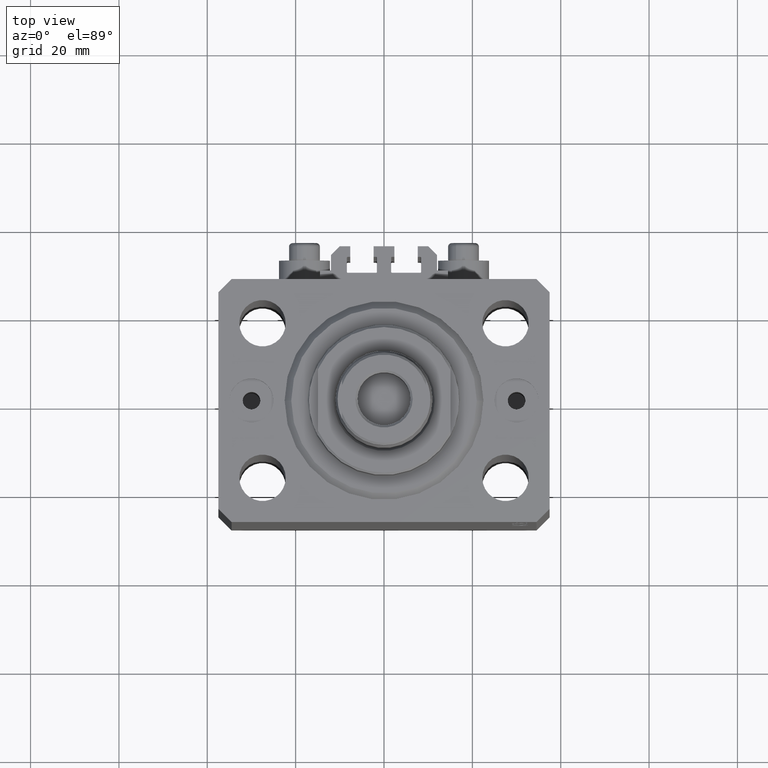
[diagram: clean part render]
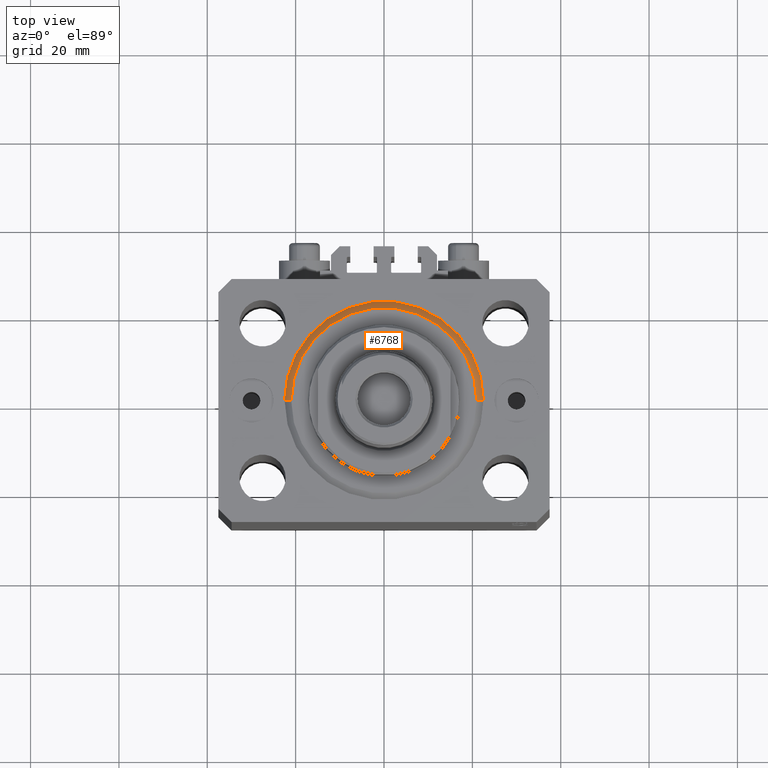
[diagram: same view with one face highlighted and labeled with its STEP entity id]
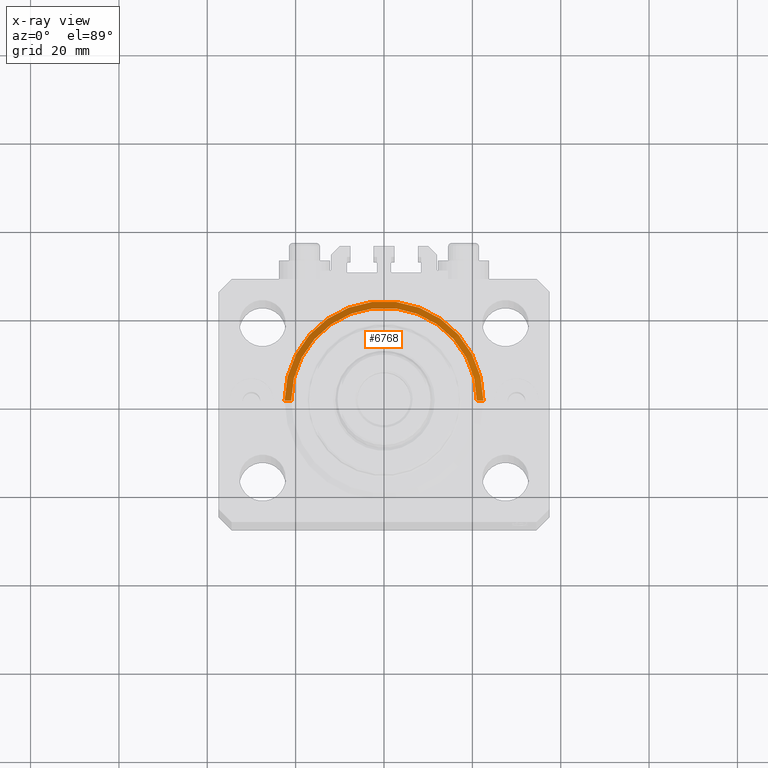
[diagram: x-ray of the same camera — body ghosted, the highlighted face saturated]
A machine part, top view. The second image highlights one B-rep face of the part: STEP entity #6768.
The next image is the same camera in x-ray: the body ghosted, the highlighted face saturated — about 0% of this face is hidden behind the body in this view.
In plain terms, the highlighted conical surface has half-angle 45 deg.
Its self-contained STEP definition (entity closure, byte-faithful):
#490 = CIRCLE ( 'NONE', #31478, 22.50000000000000355 ) ;
#2844 = VERTEX_POINT ( 'NONE', #25288 ) ;
#2964 = CARTESIAN_POINT ( 'NONE',  ( -22.50000000000000355, 0.000000000000000000, 1.500000000000004885 ) ) ;
#3199 = VERTEX_POINT ( 'NONE', #10736 ) ;
#4240 = FACE_OUTER_BOUND ( 'NONE', #37450, .T. ) ;
#4545 = EDGE_CURVE ( 'NONE', #6047, #23018, #490, .T. ) ;
#5296 = AXIS2_PLACEMENT_3D ( 'NONE', #43717, #14617, #19116 ) ;
#6047 = VERTEX_POINT ( 'NONE', #35597 ) ;
#6768 = ADVANCED_FACE ( 'NONE', ( #4240 ), #41078, .T. ) ;
#7936 = CARTESIAN_POINT ( 'NONE',  ( -22.50000000000000355, 2.755455298081545172E-15, 1.500000000000004885 ) ) ;
#8566 = ORIENTED_EDGE ( 'NONE', *, *, #30192, .F. ) ;
#10736 = CARTESIAN_POINT ( 'NONE',  ( 20.99999999999998934, 0.000000000000000000, 0.000000000000000000 ) ) ;
#10826 = CARTESIAN_POINT ( 'NONE',  ( 22.50000000000000355, 0.000000000000000000, 1.500000000000004885 ) ) ;
#14617 = DIRECTION ( 'NONE',  ( -0.000000000000000000, -0.000000000000000000, -1.000000000000000000 ) ) ;
#15731 = DIRECTION ( 'NONE',  ( -0.7071067811865491270, 8.659560562354953812E-17, 0.7071067811865459074 ) ) ;
#16381 = CARTESIAN_POINT ( 'NONE',  ( 0.000000000000000000, 0.000000000000000000, 1.500000000000004885 ) ) ;
#18805 = CIRCLE ( 'NONE', #5296, 20.99999999999998934 ) ;
#18902 = DIRECTION ( 'NONE',  ( 1.000000000000000000, 0.000000000000000000, 0.000000000000000000 ) ) ;
#19116 = DIRECTION ( 'NONE',  ( 1.000000000000000000, 0.000000000000000000, 0.000000000000000000 ) ) ;
#19906 = AXIS2_PLACEMENT_3D ( 'NONE', #22210, #43736, #18902 ) ;
#21713 = DIRECTION ( 'NONE',  ( 0.7071067811865491270, 0.000000000000000000, 0.7071067811865459074 ) ) ;
#22210 = CARTESIAN_POINT ( 'NONE',  ( 0.000000000000000000, 0.000000000000000000, 1.500000000000004885 ) ) ;
#23018 = VERTEX_POINT ( 'NONE', #2964 ) ;
#25288 = CARTESIAN_POINT ( 'NONE',  ( -20.99999999999998934, 2.663606788145492628E-15, 0.000000000000000000 ) ) ;
#25911 = ORIENTED_EDGE ( 'NONE', *, *, #42890, .F. ) ;
#28835 = DIRECTION ( 'NONE',  ( 1.000000000000000000, 0.000000000000000000, 0.000000000000000000 ) ) ;
#30192 = EDGE_CURVE ( 'NONE', #3199, #6047, #39461, .T. ) ;
#31478 = AXIS2_PLACEMENT_3D ( 'NONE', #16381, #40416, #28835 ) ;
#32188 = VECTOR ( 'NONE', #15731, 1000.000000000000000 ) ;
#33718 = EDGE_CURVE ( 'NONE', #2844, #23018, #37742, .T. ) ;
#35303 = ORIENTED_EDGE ( 'NONE', *, *, #4545, .F. ) ;
#35597 = CARTESIAN_POINT ( 'NONE',  ( 22.50000000000000355, 2.755455298081545172E-15, 1.500000000000004885 ) ) ;
#36908 = ORIENTED_EDGE ( 'NONE', *, *, #33718, .T. ) ;
#37450 = EDGE_LOOP ( 'NONE', ( #25911, #36908, #35303, #8566 ) ) ;
#37742 = LINE ( 'NONE', #7936, #32188 ) ;
#38144 = VECTOR ( 'NONE', #21713, 1000.000000000000000 ) ;
#39461 = LINE ( 'NONE', #10826, #38144 ) ;
#40416 = DIRECTION ( 'NONE',  ( -0.000000000000000000, -0.000000000000000000, 1.000000000000000000 ) ) ;
#41078 = CONICAL_SURFACE ( 'NONE', #19906, 22.50000000000000355, 0.7853981633974506105 ) ;
#42890 = EDGE_CURVE ( 'NONE', #2844, #3199, #18805, .T. ) ;
#43717 = CARTESIAN_POINT ( 'NONE',  ( 0.000000000000000000, 0.000000000000000000, 0.000000000000000000 ) ) ;
#43736 = DIRECTION ( 'NONE',  ( -0.000000000000000000, -0.000000000000000000, 1.000000000000000000 ) ) ;